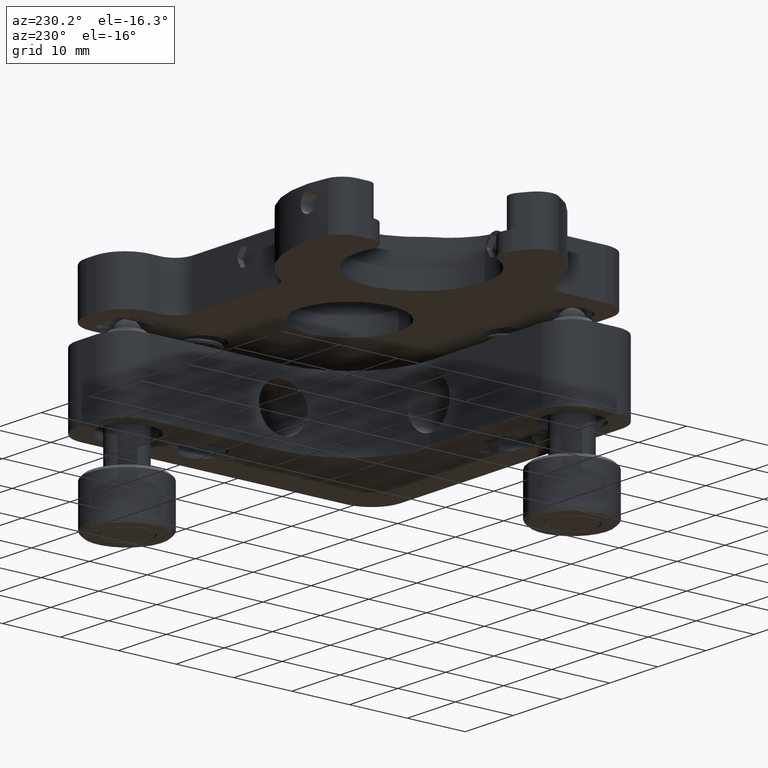
[diagram: clean part render]
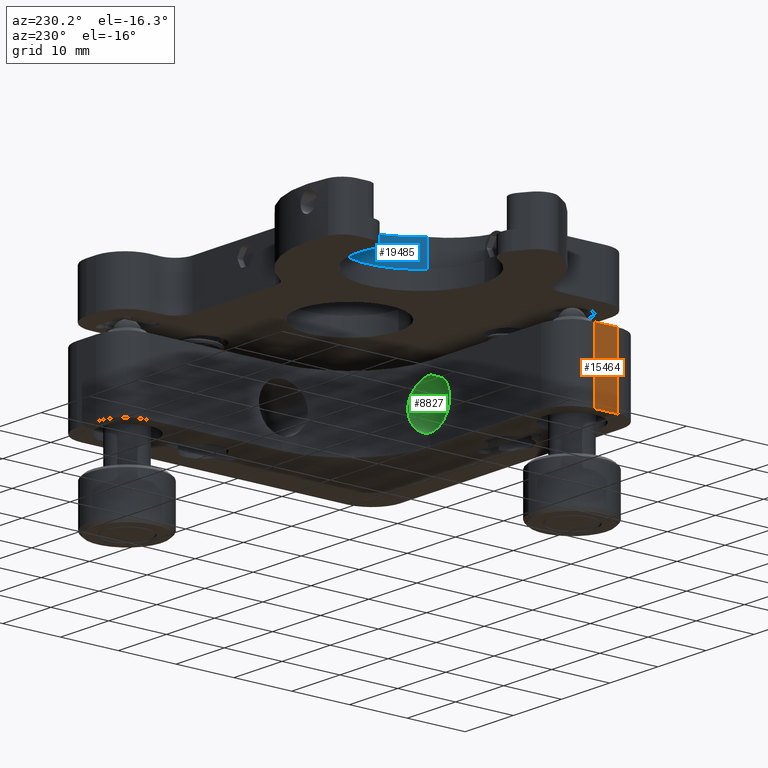
[diagram: same view with three faces highlighted in distinct colors, each labeled with its STEP entity id]
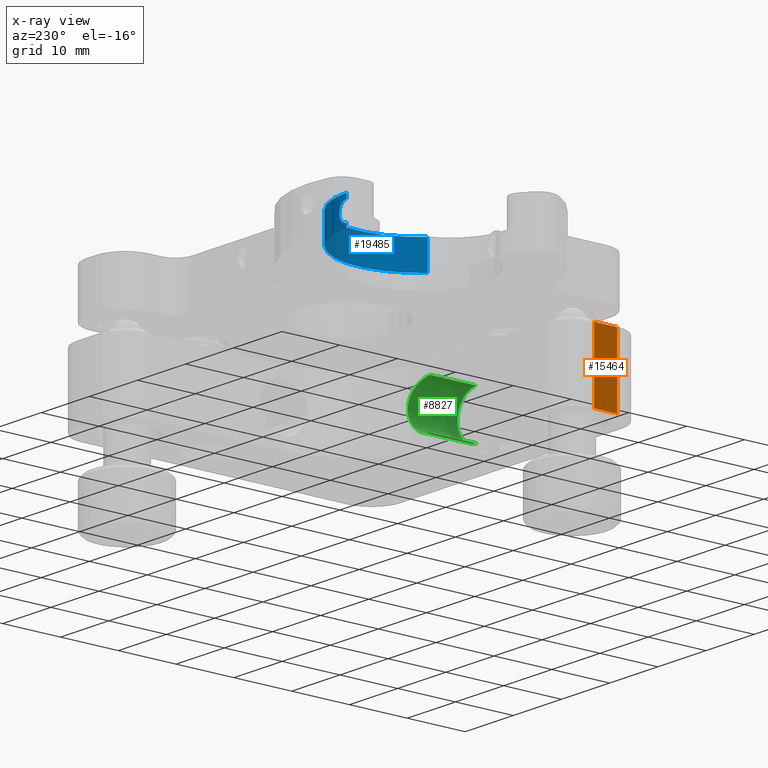
[diagram: x-ray of the same camera — body ghosted, the three highlighted faces saturated]
A machine part, auxiliary view with three faces highlighted in distinct colors.
The next image is the same camera in x-ray (body ghosted, the three faces saturated) — at least one of them is partly hidden behind the body in this view.
Their STEP definitions:

[orange] entity #15464 — the highlighted planar face has unit normal (-1, 0, 0).
#1109 = CARTESIAN_POINT ( 'NONE',  ( -28.00000000000031600, -18.99999999999999600, -15.00000000000007100 ) ) ;
#1246 = VECTOR ( 'NONE', #5126, 1000.000000000000000 ) ;
#1565 = DIRECTION ( 'NONE',  ( 0.0000000000000000000, 0.0000000000000000000, 1.000000000000000000 ) ) ;
#1976 = VECTOR ( 'NONE', #7029, 1000.000000000000000 ) ;
#3400 = ORIENTED_EDGE ( 'NONE', *, *, #12459, .F. ) ;
#4046 = VERTEX_POINT ( 'NONE', #17556 ) ;
#4834 = VECTOR ( 'NONE', #1565, 1000.000000000000000 ) ;
#5126 = DIRECTION ( 'NONE',  ( 0.0000000000000000000, -1.000000000000000000, 0.0000000000000000000 ) ) ;
#5365 = LINE ( 'NONE', #12936, #1246 ) ;
#5903 = DIRECTION ( 'NONE',  ( 0.0000000000000000000, 0.0000000000000000000, 1.000000000000000000 ) ) ;
#6101 = LINE ( 'NONE', #14694, #1976 ) ;
#6954 = LINE ( 'NONE', #17964, #7678 ) ;
#7029 = DIRECTION ( 'NONE',  ( 0.0000000000000000000, 0.0000000000000000000, 1.000000000000000000 ) ) ;
#7678 = VECTOR ( 'NONE', #12962, 1000.000000000000000 ) ;
#8321 = EDGE_CURVE ( 'NONE', #20166, #17937, #6954, .T. ) ;
#9139 = VERTEX_POINT ( 'NONE', #9484 ) ;
#9484 = CARTESIAN_POINT ( 'NONE',  ( -28.00000000000031600, -18.99999999999999600, -3.000000000000070200 ) ) ;
#10665 = DIRECTION ( 'NONE',  ( -1.000000000000000000, 0.0000000000000000000, 0.0000000000000000000 ) ) ;
#12459 = EDGE_CURVE ( 'NONE', #9139, #4046, #5365, .T. ) ;
#12630 = EDGE_CURVE ( 'NONE', #20166, #9139, #6101, .T. ) ;
#12936 = CARTESIAN_POINT ( 'NONE',  ( -28.00000000000031600, -18.99999999999999600, -3.000000000000070200 ) ) ;
#12962 = DIRECTION ( 'NONE',  ( 0.0000000000000000000, -1.000000000000000000, 0.0000000000000000000 ) ) ;
#13814 = ORIENTED_EDGE ( 'NONE', *, *, #17865, .T. ) ;
#14543 = AXIS2_PLACEMENT_3D ( 'NONE', #15224, #10665, #5903 ) ;
#14694 = CARTESIAN_POINT ( 'NONE',  ( -28.00000000000031600, -18.99999999999999600, -15.00000000000007100 ) ) ;
#15224 = CARTESIAN_POINT ( 'NONE',  ( -28.00000000000031600, -18.99999999999999600, -15.00000000000007100 ) ) ;
#15304 = EDGE_LOOP ( 'NONE', ( #3400, #15948, #15309, #13814 ) ) ;
#15309 = ORIENTED_EDGE ( 'NONE', *, *, #8321, .T. ) ;
#15464 = ADVANCED_FACE ( 'NONE', ( #18793 ), #18456, .T. ) ;
#15708 = CARTESIAN_POINT ( 'NONE',  ( -28.00000000000031600, -22.99999999999992200, -15.00000000000007100 ) ) ;
#15948 = ORIENTED_EDGE ( 'NONE', *, *, #12630, .F. ) ;
#16229 = LINE ( 'NONE', #18652, #4834 ) ;
#17556 = CARTESIAN_POINT ( 'NONE',  ( -28.00000000000031600, -22.99999999999992200, -3.000000000000070200 ) ) ;
#17865 = EDGE_CURVE ( 'NONE', #17937, #4046, #16229, .T. ) ;
#17937 = VERTEX_POINT ( 'NONE', #15708 ) ;
#17964 = CARTESIAN_POINT ( 'NONE',  ( -28.00000000000031600, -18.99999999999999600, -15.00000000000007100 ) ) ;
#18456 = PLANE ( 'NONE',  #14543 ) ;
#18652 = CARTESIAN_POINT ( 'NONE',  ( -28.00000000000031600, -22.99999999999992200, -15.00000000000007100 ) ) ;
#18793 = FACE_OUTER_BOUND ( 'NONE', #15304, .T. ) ;
#20166 = VERTEX_POINT ( 'NONE', #1109 ) ;

[blue] entity #19485 — the highlighted cylindrical surface (partial cylindrical patch) has radius 12.8 mm, axis along (-0, 0, 1).
#346 = LINE ( 'NONE', #6226, #8138 ) ;
#489 = CARTESIAN_POINT ( 'NONE',  ( -24.99999999999999300, 21.30000000000000800, 3.850000000000008100 ) ) ;
#511 = CARTESIAN_POINT ( 'NONE',  ( -23.99440267372729700, 21.26075427195912600, 6.812587898157081800 ) ) ;
#564 = CARTESIAN_POINT ( 'NONE',  ( -24.57281937527048000, 21.29330481834291100, 7.097366818150713500 ) ) ;
#709 = CARTESIAN_POINT ( 'NONE',  ( -23.35000000000000500, 21.19320684460787200, 5.718133870400765600 ) ) ;
#776 = DIRECTION ( 'NONE',  ( 2.710505431213761100E-016, 1.000000000000000000, 0.0000000000000000000 ) ) ;
#928 = VERTEX_POINT ( 'NONE', #12143 ) ;
#994 = CARTESIAN_POINT ( 'NONE',  ( -24.99999999999996800, 21.30000000000000800, 7.149999999999991500 ) ) ;
#1052 = CARTESIAN_POINT ( 'NONE',  ( -24.16988725373502000, 21.27460170711220800, 4.057910681941190300 ) ) ;
#1068 = DIRECTION ( 'NONE',  ( -0.0000000000000000000, 0.0000000000000000000, 1.000000000000000000 ) ) ;
#1306 = B_SPLINE_CURVE_WITH_KNOTS ( 'NONE', 3,
 ( #16016, #16079, #5379, #564, #17580, #10007, #8263, #511, #2268, #17795, #9804, #8461, #709, #5178 ),
 .UNSPECIFIED., .F., .F.,
 ( 4, 2, 2, 2, 2, 2, 4 ),
 ( 0.007746557822973940100, 0.008069088017424227300, 0.008391618211874516200, 0.008714148406324805100, 0.009036678600775092200, 0.009681738989675668300, 0.01032679937857624400 ),
 .UNSPECIFIED. ) ;
#1701 = DIRECTION ( 'NONE',  ( -0.0000000000000000000, 0.0000000000000000000, 1.000000000000000000 ) ) ;
#2268 = CARTESIAN_POINT ( 'NONE',  ( -23.90965460157437400, 21.25370416398493800, 6.743056108411432000 ) ) ;
#2616 = CARTESIAN_POINT ( 'NONE',  ( -23.51745086233442100, 21.21392116591286500, 4.767710228093216400 ) ) ;
#3049 = B_SPLINE_CURVE_WITH_KNOTS ( 'NONE', 3,
 ( #13539, #4295, #5918, #5801, #16820, #2616, #4178, #7485, #16751, #19903, #1052, #16678, #19721, #16558 ),
 .UNSPECIFIED., .F., .F.,
 ( 4, 2, 2, 2, 2, 2, 4 ),
 ( 8.673617379884035500E-019, 0.0003228271439568035400, 0.0006456542879136062100, 0.0009684814318704087800, 0.001291308575827211600, 0.001936962863740824300, 0.002582617151654437000 ),
 .UNSPECIFIED. ) ;
#3837 = ORIENTED_EDGE ( 'NONE', *, *, #5575, .T. ) ;
#4178 = CARTESIAN_POINT ( 'NONE',  ( -23.56817181434933400, 21.21980733478384800, 4.672959944660109800 ) ) ;
#4295 = CARTESIAN_POINT ( 'NONE',  ( -23.35000000000001200, 21.19320684460787900, 5.390832648239735300 ) ) ;
#4533 = CARTESIAN_POINT ( 'NONE',  ( -15.78509121043512800, -0.3839999999999954000, 8.000000000000000000 ) ) ;
#5178 = CARTESIAN_POINT ( 'NONE',  ( -23.35000000000000100, 21.19320684460787200, 5.500000000000000000 ) ) ;
#5180 = CARTESIAN_POINT ( 'NONE',  ( -24.99999999999999600, 8.500000000000005300, 8.000000000000000000 ) ) ;
#5235 = AXIS2_PLACEMENT_3D ( 'NONE', #5180, #11501, #776 ) ;
#5379 = CARTESIAN_POINT ( 'NONE',  ( -24.78376419783462800, 21.29860826570772800, 7.139300495862531900 ) ) ;
#5575 = EDGE_CURVE ( 'NONE', #8531, #13874, #16906, .T. ) ;
#5801 = CARTESIAN_POINT ( 'NONE',  ( -23.40273660711310200, 21.19996842593730700, 5.072411627432994200 ) ) ;
#5883 = DIRECTION ( 'NONE',  ( 2.710505431213761100E-016, 1.000000000000000000, 0.0000000000000000000 ) ) ;
#5918 = CARTESIAN_POINT ( 'NONE',  ( -23.36072711051721700, 21.19461432103661000, 5.283513149549831300 ) ) ;
#6226 = CARTESIAN_POINT ( 'NONE',  ( -15.78509121043512800, -0.3839999999999989000, 3.000000000000000000 ) ) ;
#7478 = DIRECTION ( 'NONE',  ( -0.0000000000000000000, 0.0000000000000000000, 1.000000000000000000 ) ) ;
#7485 = CARTESIAN_POINT ( 'NONE',  ( -23.68798633190186100, 21.23272361759133300, 4.493646512857452500 ) ) ;
#7653 = CARTESIAN_POINT ( 'NONE',  ( -24.99999999999999300, 21.30000000000000800, 3.000000000000000000 ) ) ;
#7785 = EDGE_CURVE ( 'NONE', #19036, #13874, #19181, .T. ) ;
#7806 = CARTESIAN_POINT ( 'NONE',  ( -24.99999999999999300, 21.30000000000000800, 8.000000000000000000 ) ) ;
#7881 = CARTESIAN_POINT ( 'NONE',  ( -23.35000000000000100, 21.19320684460787200, 5.500000000000000000 ) ) ;
#8138 = VECTOR ( 'NONE', #1701, 1000.000000000000000 ) ;
#8263 = CARTESIAN_POINT ( 'NONE',  ( -24.17367028010306000, 21.27361557140126900, 6.932233279535939400 ) ) ;
#8461 = CARTESIAN_POINT ( 'NONE',  ( -23.39390805670488000, 21.19910856083299700, 5.934847322721659600 ) ) ;
#8531 = VERTEX_POINT ( 'NONE', #4533 ) ;
#9804 = CARTESIAN_POINT ( 'NONE',  ( -23.55873457891858200, 21.21886958641114500, 6.331491136688010900 ) ) ;
#9913 = VERTEX_POINT ( 'NONE', #489 ) ;
#10007 = CARTESIAN_POINT ( 'NONE',  ( -24.26836335307547200, 21.27946374601609500, 6.982862426155491200 ) ) ;
#10091 = DIRECTION ( 'NONE',  ( 2.710505431213761100E-016, 1.000000000000000000, 0.0000000000000000000 ) ) ;
#10171 = DIRECTION ( 'NONE',  ( -0.0000000000000000000, 0.0000000000000000000, 1.000000000000000000 ) ) ;
#10296 = CARTESIAN_POINT ( 'NONE',  ( -24.99999999999999600, 8.500000000000005300, 3.000000000000000000 ) ) ;
#10350 = EDGE_CURVE ( 'NONE', #928, #8531, #346, .T. ) ;
#10401 = VERTEX_POINT ( 'NONE', #13923 ) ;
#10669 = VECTOR ( 'NONE', #18790, 1000.000000000000000 ) ;
#11467 = EDGE_CURVE ( 'NONE', #11644, #9913, #3049, .T. ) ;
#11501 = DIRECTION ( 'NONE',  ( -0.0000000000000000000, 0.0000000000000000000, 1.000000000000000000 ) ) ;
#11633 = LINE ( 'NONE', #7653, #10669 ) ;
#11644 = VERTEX_POINT ( 'NONE', #7881 ) ;
#11809 = CYLINDRICAL_SURFACE ( 'NONE', #18432, 12.80000000000000100 ) ;
#12143 = CARTESIAN_POINT ( 'NONE',  ( -15.78509121043512800, -0.3839999999999989000, 3.000000000000000000 ) ) ;
#12786 = ORIENTED_EDGE ( 'NONE', *, *, #7785, .F. ) ;
#13539 = CARTESIAN_POINT ( 'NONE',  ( -23.35000000000000100, 21.19320684460787200, 5.500000000000000000 ) ) ;
#13874 = VERTEX_POINT ( 'NONE', #7806 ) ;
#13923 = CARTESIAN_POINT ( 'NONE',  ( -24.99999999999999300, 21.30000000000000800, 3.000000000000000000 ) ) ;
#14583 = AXIS2_PLACEMENT_3D ( 'NONE', #16514, #1068, #5883 ) ;
#14801 = ORIENTED_EDGE ( 'NONE', *, *, #16508, .F. ) ;
#14847 = CIRCLE ( 'NONE', #14583, 12.80000000000000100 ) ;
#15252 = ORIENTED_EDGE ( 'NONE', *, *, #11467, .T. ) ;
#15959 = FACE_OUTER_BOUND ( 'NONE', #16249, .T. ) ;
#16016 = CARTESIAN_POINT ( 'NONE',  ( -24.99999999999996800, 21.30000000000000800, 7.149999999999991500 ) ) ;
#16042 = EDGE_CURVE ( 'NONE', #928, #10401, #14847, .T. ) ;
#16079 = CARTESIAN_POINT ( 'NONE',  ( -24.89097532500436900, 21.30000000000000800, 7.149999999999989700 ) ) ;
#16249 = EDGE_LOOP ( 'NONE', ( #14801, #18727, #17454, #3837, #12786, #18205, #15252 ) ) ;
#16508 = EDGE_CURVE ( 'NONE', #10401, #9913, #11633, .T. ) ;
#16514 = CARTESIAN_POINT ( 'NONE',  ( -24.99999999999999600, 8.500000000000005300, 3.000000000000000000 ) ) ;
#16558 = CARTESIAN_POINT ( 'NONE',  ( -24.99999999999999300, 21.30000000000000800, 3.850000000000008100 ) ) ;
#16678 = CARTESIAN_POINT ( 'NONE',  ( -24.56707592117602000, 21.29422184772641600, 3.893362046151864300 ) ) ;
#16751 = CARTESIAN_POINT ( 'NONE',  ( -23.75764663790761200, 21.23979568215425200, 4.408842751971280700 ) ) ;
#16820 = CARTESIAN_POINT ( 'NONE',  ( -23.43453777977573100, 21.20397856561836000, 4.967526251649186300 ) ) ;
#16906 = CIRCLE ( 'NONE', #5235, 12.80000000000000100 ) ;
#17454 = ORIENTED_EDGE ( 'NONE', *, *, #10350, .T. ) ;
#17580 = CARTESIAN_POINT ( 'NONE',  ( -24.46797785825783200, 21.28932907777256000, 7.065607102284220200 ) ) ;
#17795 = CARTESIAN_POINT ( 'NONE',  ( -23.68168138930243000, 21.23284445840545200, 6.515235118972985800 ) ) ;
#18201 = VECTOR ( 'NONE', #7478, 1000.000000000000000 ) ;
#18205 = ORIENTED_EDGE ( 'NONE', *, *, #18792, .T. ) ;
#18432 = AXIS2_PLACEMENT_3D ( 'NONE', #10296, #10171, #10091 ) ;
#18727 = ORIENTED_EDGE ( 'NONE', *, *, #16042, .F. ) ;
#18790 = DIRECTION ( 'NONE',  ( -0.0000000000000000000, 0.0000000000000000000, 1.000000000000000000 ) ) ;
#18792 = EDGE_CURVE ( 'NONE', #19036, #11644, #1306, .T. ) ;
#19036 = VERTEX_POINT ( 'NONE', #994 ) ;
#19181 = LINE ( 'NONE', #19839, #18201 ) ;
#19485 = ADVANCED_FACE ( 'NONE', ( #15959 ), #11809, .F. ) ;
#19721 = CARTESIAN_POINT ( 'NONE',  ( -24.78445661730462400, 21.30000000000001100, 3.850000000000007600 ) ) ;
#19839 = CARTESIAN_POINT ( 'NONE',  ( -24.99999999999999300, 21.30000000000000800, 3.000000000000000000 ) ) ;
#19903 = CARTESIAN_POINT ( 'NONE',  ( -23.98587250357183700, 21.26067745138719200, 4.180792099061003200 ) ) ;

[green] entity #8827 — the highlighted cylindrical surface (edge-blend (fillet) strip) has radius 4 mm, axis along (-0, -1, -0).
#413 = CARTESIAN_POINT ( 'NONE',  ( -3.268658964325390500E-013, -21.99999999999995700, -5.000000000000071900 ) ) ;
#1237 = CARTESIAN_POINT ( 'NONE',  ( 0.5266779375068245700, -13.99244850018110000, -12.97379308742480600 ) ) ;
#1365 = CARTESIAN_POINT ( 'NONE',  ( 3.974046004526617300, -13.42422468547087700, -8.474967880207442400 ) ) ;
#1457 = EDGE_LOOP ( 'NONE', ( #4828, #2985, #15811, #8039 ) ) ;
#1773 = VECTOR ( 'NONE', #8882, 1000.000000000000000 ) ;
#2095 = CYLINDRICAL_SURFACE ( 'NONE', #13424, 4.000000000000000000 ) ;
#2751 = CARTESIAN_POINT ( 'NONE',  ( 0.2656925048556437200, -13.99999999999995700, -13.00000000000006900 ) ) ;
#2882 = VERTEX_POINT ( 'NONE', #413 ) ;
#2946 = CARTESIAN_POINT ( 'NONE',  ( -3.273557551521980000E-013, -30.15324711444856100, -9.000000000000071100 ) ) ;
#2949 = CARTESIAN_POINT ( 'NONE',  ( 3.871551344183146600, -13.45414212209211500, -7.960870286123288500 ) ) ;
#2985 = ORIENTED_EDGE ( 'NONE', *, *, #13627, .F. ) ;
#3174 = EDGE_CURVE ( 'NONE', #12318, #2882, #8081, .T. ) ;
#3919 = EDGE_CURVE ( 'NONE', #18523, #9409, #15384, .T. ) ;
#4285 = CARTESIAN_POINT ( 'NONE',  ( 0.5315044674717492900, -13.99229242761557000, -5.026747969633778900 ) ) ;
#4428 = CARTESIAN_POINT ( 'NONE',  ( 2.007381552165904600, -13.85707990081637700, -12.46965339641109900 ) ) ;
#4491 = CARTESIAN_POINT ( 'NONE',  ( 3.795697206113263400, -13.47603777632072000, -7.710862613213674200 ) ) ;
#4569 = CARTESIAN_POINT ( 'NONE',  ( 4.000254002805563800, -13.41633213603268300, -8.741554895105098300 ) ) ;
#4828 = ORIENTED_EDGE ( 'NONE', *, *, #3174, .F. ) ;
#5749 = CARTESIAN_POINT ( 'NONE',  ( -3.273557551521980000E-013, -13.99999999999995900, -13.00000000000007100 ) ) ;
#5859 = CARTESIAN_POINT ( 'NONE',  ( -3.273557551521980000E-013, -13.99999999999995900, -5.000000000000070200 ) ) ;
#6057 = CARTESIAN_POINT ( 'NONE',  ( 3.014478909487606600, -13.67291008003545500, -6.357806763693206500 ) ) ;
#6119 = CARTESIAN_POINT ( 'NONE',  ( 2.012962963995116500, -13.85625576759328400, -5.533645932257630100 ) ) ;
#6456 = FACE_OUTER_BOUND ( 'NONE', #1457, .T. ) ;
#7088 = VECTOR ( 'NONE', #13141, 1000.000000000000000 ) ;
#7550 = CARTESIAN_POINT ( 'NONE',  ( 2.441092728835465100, -13.78728799883470500, -12.17948764369817400 ) ) ;
#7583 = AXIS2_PLACEMENT_3D ( 'NONE', #9313, #17069, #7742 ) ;
#7613 = CARTESIAN_POINT ( 'NONE',  ( 3.177128451827160700, -13.63556036348724000, -11.44435474776606700 ) ) ;
#7672 = CARTESIAN_POINT ( 'NONE',  ( 1.778824125781195900, -13.88864995381733700, -5.407791096419543000 ) ) ;
#7742 = DIRECTION ( 'NONE',  ( 0.0000000000000000000, 0.0000000000000000000, -1.000000000000000000 ) ) ;
#8039 = ORIENTED_EDGE ( 'NONE', *, *, #19152, .T. ) ;
#8081 = LINE ( 'NONE', #12063, #1773 ) ;
#8827 = ADVANCED_FACE ( 'NONE', ( #6456 ), #2095, .F. ) ;
#8882 = DIRECTION ( 'NONE',  ( -0.0000000000000000000, -1.000000000000000000, -0.0000000000000000000 ) ) ;
#9270 = CARTESIAN_POINT ( 'NONE',  ( 1.296731905514123300, -13.94192594928525600, -5.207024065111150800 ) ) ;
#9313 = CARTESIAN_POINT ( 'NONE',  ( -3.273557551521980000E-013, -21.99999999999995700, -9.000000000000071100 ) ) ;
#9409 = VERTEX_POINT ( 'NONE', #15049 ) ;
#10468 = CARTESIAN_POINT ( 'NONE',  ( 1.047381011669196800, -13.96315642665529000, -5.130604477163619700 ) ) ;
#10676 = CARTESIAN_POINT ( 'NONE',  ( 3.999742191199867400, -13.41648472869256800, -9.266248686648070900 ) ) ;
#10738 = CARTESIAN_POINT ( 'NONE',  ( 3.792861682036053700, -13.47683005494406300, -10.29688808568378800 ) ) ;
#11566 = CARTESIAN_POINT ( 'NONE',  ( -3.273557551521980000E-013, -30.15324711444856100, -13.00000000000007100 ) ) ;
#12063 = CARTESIAN_POINT ( 'NONE',  ( -3.268658964325390500E-013, -30.15324711444856100, -5.000000000000070200 ) ) ;
#12102 = CARTESIAN_POINT ( 'NONE',  ( 1.778186504997879600, -13.88874587474703900, -12.59258562958734900 ) ) ;
#12235 = CARTESIAN_POINT ( 'NONE',  ( 3.012074847234414800, -13.67342190674050100, -11.64474534711201200 ) ) ;
#12295 = DIRECTION ( 'NONE',  ( 0.0000000000000000000, 0.0000000000000000000, -1.000000000000000000 ) ) ;
#12297 = CARTESIAN_POINT ( 'NONE',  ( 3.469533750978520500, -13.56410657494752500, -11.00782242321297300 ) ) ;
#12318 = VERTEX_POINT ( 'NONE', #18630 ) ;
#12748 = B_SPLINE_CURVE_WITH_KNOTS ( 'NONE', 3,
 ( #13722, #2751, #1237, #18392, #19968, #12102, #4428, #7550, #17015, #12235, #7613, #12297, #18467, #10738, #13659, #20028, #10676, #4569, #1365, #2949, #4491, #15390, #15444, #18596, #6057, #13601, #16941, #6119, #7672, #9270, #10468, #4285, #15170, #5859 ),
 .UNSPECIFIED., .F., .F.,
 ( 4, 2, 2, 2, 2, 2, 2, 2, 2, 2, 2, 2, 2, 2, 2, 2, 4 ),
 ( 2.575317251020598200E-018, 0.0007854640763440368200, 0.001570928152688071000, 0.002356392229032105500, 0.003141856305376139500, 0.003927320381720173500, 0.004712784458064208300, 0.005498248534408242300, 0.006283712610752276300, 0.007069176687096310300, 0.007854640763440343500, 0.008640104839784378300, 0.009425568916128413200, 0.01021103299247244600, 0.01099649706881648100, 0.01178196114516051400, 0.01256742522150454900 ),
 .UNSPECIFIED. ) ;
#13029 = CIRCLE ( 'NONE', #7583, 3.999999999999998200 ) ;
#13141 = DIRECTION ( 'NONE',  ( -0.0000000000000000000, -1.000000000000000000, -0.0000000000000000000 ) ) ;
#13424 = AXIS2_PLACEMENT_3D ( 'NONE', #2946, #13721, #12295 ) ;
#13601 = CARTESIAN_POINT ( 'NONE',  ( 2.645152070889408500, -13.74913537915567700, -5.988117081359135300 ) ) ;
#13627 = EDGE_CURVE ( 'NONE', #18523, #12318, #12748, .T. ) ;
#13659 = CARTESIAN_POINT ( 'NONE',  ( 3.870481272222332500, -13.45445197353494900, -10.04346952809525600 ) ) ;
#13721 = DIRECTION ( 'NONE',  ( -0.0000000000000000000, -1.000000000000000000, -0.0000000000000000000 ) ) ;
#13722 = CARTESIAN_POINT ( 'NONE',  ( -3.273557551521980000E-013, -13.99999999999995900, -13.00000000000007100 ) ) ;
#15049 = CARTESIAN_POINT ( 'NONE',  ( -3.273557551521980000E-013, -21.99999999999995700, -13.00000000000006900 ) ) ;
#15170 = CARTESIAN_POINT ( 'NONE',  ( 0.2657086982102195300, -13.99999999999996300, -5.000000000000071100 ) ) ;
#15384 = LINE ( 'NONE', #11566, #7088 ) ;
#15390 = CARTESIAN_POINT ( 'NONE',  ( 3.594189080255192800, -13.53117571701341500, -7.224895119188532000 ) ) ;
#15444 = CARTESIAN_POINT ( 'NONE',  ( 3.469834524077602700, -13.56400834463701700, -6.993087938977268400 ) ) ;
#15811 = ORIENTED_EDGE ( 'NONE', *, *, #3919, .T. ) ;
#16941 = CARTESIAN_POINT ( 'NONE',  ( 2.444847639018660900, -13.78660813301672200, -5.823468803969537300 ) ) ;
#17015 = CARTESIAN_POINT ( 'NONE',  ( 2.645304200214305900, -13.74908823207568700, -12.01158405573241500 ) ) ;
#17069 = DIRECTION ( 'NONE',  ( -0.0000000000000000000, -1.000000000000000000, -0.0000000000000000000 ) ) ;
#18392 = CARTESIAN_POINT ( 'NONE',  ( 1.039700811151955900, -13.96370391061648600, -12.87136195347466500 ) ) ;
#18467 = CARTESIAN_POINT ( 'NONE',  ( 3.592859246225948300, -13.53152284503521100, -10.77738034271082200 ) ) ;
#18523 = VERTEX_POINT ( 'NONE', #5749 ) ;
#18596 = CARTESIAN_POINT ( 'NONE',  ( 3.181192866179790400, -13.63459152105520300, -6.561258604663813700 ) ) ;
#18630 = CARTESIAN_POINT ( 'NONE',  ( -3.273557551521980000E-013, -13.99999999999995900, -5.000000000000070200 ) ) ;
#19152 = EDGE_CURVE ( 'NONE', #9409, #2882, #13029, .T. ) ;
#19968 = CARTESIAN_POINT ( 'NONE',  ( 1.294466742959822000, -13.94215066161711800, -12.79380740204947900 ) ) ;
#20028 = CARTESIAN_POINT ( 'NONE',  ( 3.973928279618378600, -13.42426151470655400, -9.526638360866648700 ) ) ;